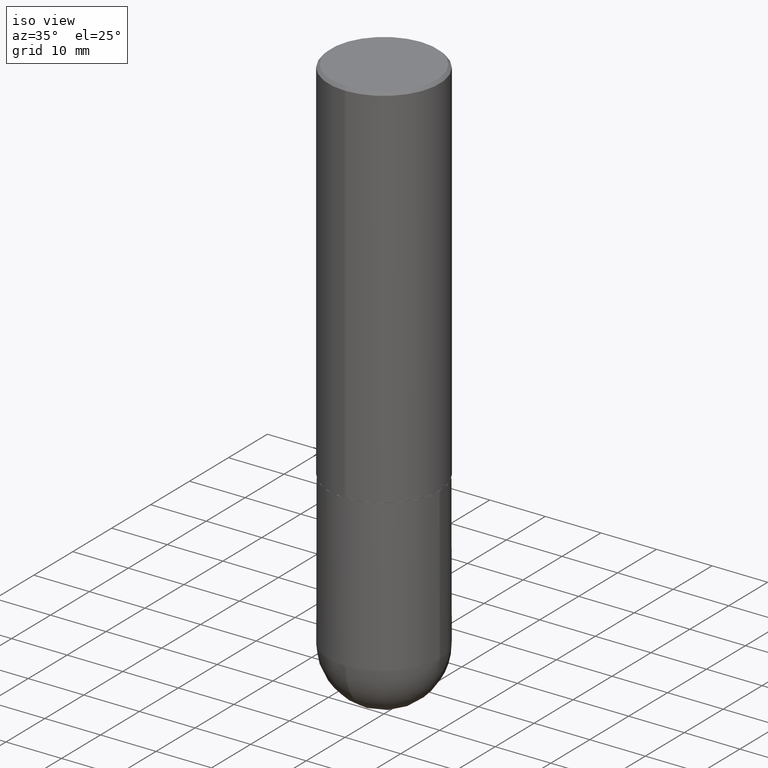
[diagram: clean part render]
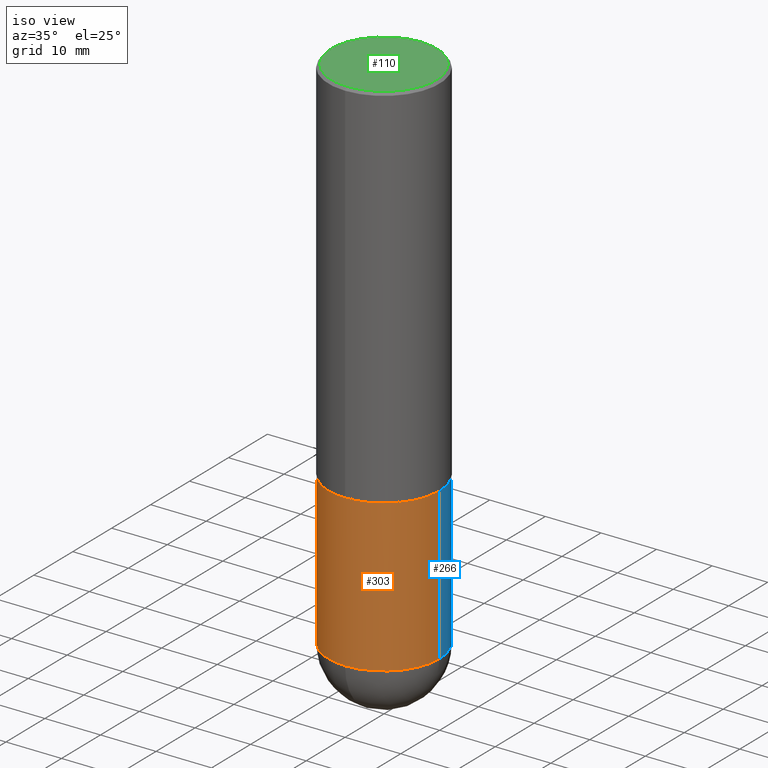
[diagram: same view with three faces highlighted in distinct colors, each labeled with its STEP entity id]
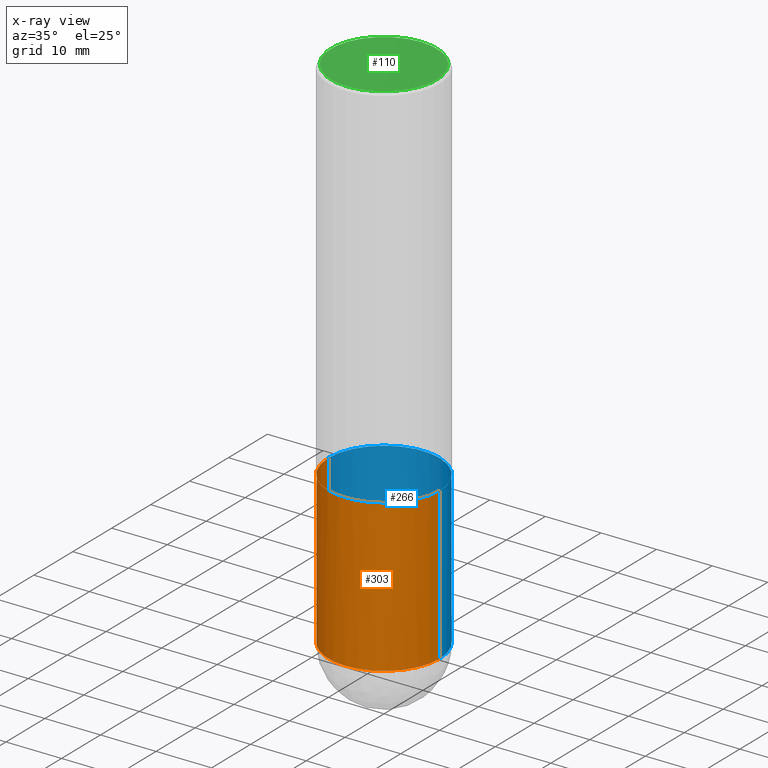
[diagram: x-ray of the same camera — body ghosted, the three highlighted faces saturated]
A machine part, iso view with three faces highlighted in distinct colors.
The next image is the same camera in x-ray (body ghosted, the three faces saturated) — at least one of them is partly hidden behind the body in this view.
Their STEP definitions:

[orange] entity #303 — the highlighted cylindrical surface (partial cylindrical patch) has radius 10 mm, axis along (-0, 0, 1).
#21 = CARTESIAN_POINT ( 'NONE',  ( 9.050190957929953666E-29, -1.292127413879071357E-14, -3.700800000000000090 ) ) ;
#34 = VECTOR ( 'NONE', #102, 39.37007874015748143 ) ;
#43 = DIRECTION ( 'NONE',  ( -2.445468806185136597E-29, 3.491481338843145583E-15, 1.000000000000000000 ) ) ;
#46 = AXIS2_PLACEMENT_3D ( 'NONE', #21, #248, #246 ) ;
#47 = EDGE_CURVE ( 'NONE', #376, #300, #113, .T. ) ;
#61 = CARTESIAN_POINT ( 'NONE',  ( 9.050190957929953666E-29, -1.292127413879071357E-14, -3.700800000000000090 ) ) ;
#69 = CARTESIAN_POINT ( 'NONE',  ( 0.3936999999999999389, -2.749192406205082822E-15, 1.919750796630859611E-29 ) ) ;
#82 = CARTESIAN_POINT ( 'NONE',  ( 0.000000000000000000, 0.000000000000000000, 0.000000000000000000 ) ) ;
#86 = EDGE_CURVE ( 'NONE', #311, #376, #412, .T. ) ;
#87 = EDGE_CURVE ( 'NONE', #213, #300, #129, .T. ) ;
#95 = DIRECTION ( 'NONE',  ( 1.000000000000000000, -6.982962677686269866E-15, 0.000000000000000000 ) ) ;
#101 = ORIENTED_EDGE ( 'NONE', *, *, #86, .F. ) ;
#102 = DIRECTION ( 'NONE',  ( -2.445468806185136877E-29, 3.491481338843145188E-15, 1.000000000000000000 ) ) ;
#108 = ORIENTED_EDGE ( 'NONE', *, *, #185, .T. ) ;
#111 = CARTESIAN_POINT ( 'NONE',  ( 6.421801085042169169E-29, -9.168629995802101197E-15, -2.626000000000000334 ) ) ;
#113 = CIRCLE ( 'NONE', #204, 0.3937000000000000499 ) ;
#129 = LINE ( 'NONE', #69, #318 ) ;
#131 = DIRECTION ( 'NONE',  ( -2.445468806185136877E-29, 3.491481338843145188E-15, 1.000000000000000000 ) ) ;
#139 = CARTESIAN_POINT ( 'NONE',  ( -0.3936999999999999389, -8.247545316608896543E-15, -3.700800000000000090 ) ) ;
#172 = AXIS2_PLACEMENT_3D ( 'NONE', #82, #325, #258 ) ;
#173 = EDGE_CURVE ( 'NONE', #372, #213, #323, .T. ) ;
#181 = DIRECTION ( 'NONE',  ( -2.445468806185136597E-29, 3.491481338843145583E-15, 1.000000000000000000 ) ) ;
#182 = CIRCLE ( 'NONE', #273, 0.3936999999999999389 ) ;
#185 = EDGE_CURVE ( 'NONE', #311, #372, #182, .T. ) ;
#204 = AXIS2_PLACEMENT_3D ( 'NONE', #111, #43, #282 ) ;
#213 = VERTEX_POINT ( 'NONE', #225 ) ;
#225 = CARTESIAN_POINT ( 'NONE',  ( 0.3936999999999999389, -1.379414447350149376E-14, -3.700800000000000090 ) ) ;
#234 = CARTESIAN_POINT ( 'NONE',  ( -0.3937000000000000499, -8.247545316608893388E-15, -2.626000000000000334 ) ) ;
#246 = DIRECTION ( 'NONE',  ( 1.000000000000000000, -6.982962677686269866E-15, 0.000000000000000000 ) ) ;
#248 = DIRECTION ( 'NONE',  ( -2.445468806185136597E-29, 3.491481338843145583E-15, 1.000000000000000000 ) ) ;
#258 = DIRECTION ( 'NONE',  ( 1.000000000000000000, -6.982962677686266711E-15, 4.876176775795935793E-29 ) ) ;
#271 = ORIENTED_EDGE ( 'NONE', *, *, #173, .T. ) ;
#273 = AXIS2_PLACEMENT_3D ( 'NONE', #61, #181, #95 ) ;
#279 = CARTESIAN_POINT ( 'NONE',  ( -0.3936999999999999389, 2.797406750687513998E-15, -1.936584745033356455E-29 ) ) ;
#282 = DIRECTION ( 'NONE',  ( 1.000000000000000000, -6.982962677686267499E-15, 0.000000000000000000 ) ) ;
#293 = CARTESIAN_POINT ( 'NONE',  ( -2.797406750687425645E-15, -0.3937000000000133171, -3.700799999999998313 ) ) ;
#300 = VERTEX_POINT ( 'NONE', #322 ) ;
#303 = ADVANCED_FACE ( 'NONE', ( #357 ), #360, .T. ) ;
#311 = VERTEX_POINT ( 'NONE', #139 ) ;
#318 = VECTOR ( 'NONE', #131, 39.37007874015748143 ) ;
#322 = CARTESIAN_POINT ( 'NONE',  ( 0.3937000000000000499, -1.191782240200718599E-14, -2.626000000000000334 ) ) ;
#323 = CIRCLE ( 'NONE', #46, 0.3936999999999999389 ) ;
#325 = DIRECTION ( 'NONE',  ( -2.445468806185136597E-29, 3.491481338843145583E-15, 1.000000000000000000 ) ) ;
#339 = ORIENTED_EDGE ( 'NONE', *, *, #47, .F. ) ;
#348 = EDGE_LOOP ( 'NONE', ( #101, #108, #271, #373, #339 ) ) ;
#357 = FACE_OUTER_BOUND ( 'NONE', #348, .T. ) ;
#360 = CYLINDRICAL_SURFACE ( 'NONE', #172, 0.3936999999999999389 ) ;
#372 = VERTEX_POINT ( 'NONE', #293 ) ;
#373 = ORIENTED_EDGE ( 'NONE', *, *, #87, .T. ) ;
#376 = VERTEX_POINT ( 'NONE', #234 ) ;
#412 = LINE ( 'NONE', #279, #34 ) ;

[blue] entity #266 — the highlighted cylindrical surface (partial cylindrical patch) has radius 10 mm, axis along (-0, 0, 1).
#3 = FACE_OUTER_BOUND ( 'NONE', #51, .T. ) ;
#17 = AXIS2_PLACEMENT_3D ( 'NONE', #44, #233, #36 ) ;
#27 = ORIENTED_EDGE ( 'NONE', *, *, #86, .T. ) ;
#34 = VECTOR ( 'NONE', #102, 39.37007874015748143 ) ;
#35 = DIRECTION ( 'NONE',  ( -2.445468806185136597E-29, 3.491481338843145583E-15, 1.000000000000000000 ) ) ;
#36 = DIRECTION ( 'NONE',  ( 1.000000000000000000, -6.982962677686267499E-15, 0.000000000000000000 ) ) ;
#44 = CARTESIAN_POINT ( 'NONE',  ( 6.421801085042169169E-29, -9.168629995802101197E-15, -2.626000000000000334 ) ) ;
#51 = EDGE_LOOP ( 'NONE', ( #221, #27, #306, #367, #138 ) ) ;
#69 = CARTESIAN_POINT ( 'NONE',  ( 0.3936999999999999389, -2.749192406205082822E-15, 1.919750796630859611E-29 ) ) ;
#75 = VERTEX_POINT ( 'NONE', #92 ) ;
#86 = EDGE_CURVE ( 'NONE', #311, #376, #412, .T. ) ;
#87 = EDGE_CURVE ( 'NONE', #213, #300, #129, .T. ) ;
#92 = CARTESIAN_POINT ( 'NONE',  ( 2.749192406205172752E-15, 0.3936999999999870048, -3.700800000000001866 ) ) ;
#102 = DIRECTION ( 'NONE',  ( -2.445468806185136877E-29, 3.491481338843145188E-15, 1.000000000000000000 ) ) ;
#112 = DIRECTION ( 'NONE',  ( 1.000000000000000000, -6.982962677686269866E-15, 0.000000000000000000 ) ) ;
#128 = DIRECTION ( 'NONE',  ( 1.000000000000000000, -6.982962677686269866E-15, 0.000000000000000000 ) ) ;
#129 = LINE ( 'NONE', #69, #318 ) ;
#131 = DIRECTION ( 'NONE',  ( -2.445468806185136877E-29, 3.491481338843145188E-15, 1.000000000000000000 ) ) ;
#135 = DIRECTION ( 'NONE',  ( -2.445468806185136597E-29, 3.491481338843145583E-15, 1.000000000000000000 ) ) ;
#138 = ORIENTED_EDGE ( 'NONE', *, *, #314, .T. ) ;
#139 = CARTESIAN_POINT ( 'NONE',  ( -0.3936999999999999389, -8.247545316608896543E-15, -3.700800000000000090 ) ) ;
#144 = EDGE_CURVE ( 'NONE', #75, #311, #295, .T. ) ;
#146 = AXIS2_PLACEMENT_3D ( 'NONE', #354, #135, #112 ) ;
#194 = CARTESIAN_POINT ( 'NONE',  ( 0.000000000000000000, 0.000000000000000000, 0.000000000000000000 ) ) ;
#200 = DIRECTION ( 'NONE',  ( 1.000000000000000000, -6.982962677686266711E-15, 4.876176775795935793E-29 ) ) ;
#213 = VERTEX_POINT ( 'NONE', #225 ) ;
#221 = ORIENTED_EDGE ( 'NONE', *, *, #144, .T. ) ;
#225 = CARTESIAN_POINT ( 'NONE',  ( 0.3936999999999999389, -1.379414447350149376E-14, -3.700800000000000090 ) ) ;
#233 = DIRECTION ( 'NONE',  ( -2.445468806185136597E-29, 3.491481338843145583E-15, 1.000000000000000000 ) ) ;
#234 = CARTESIAN_POINT ( 'NONE',  ( -0.3937000000000000499, -8.247545316608893388E-15, -2.626000000000000334 ) ) ;
#254 = CARTESIAN_POINT ( 'NONE',  ( 9.050190957929953666E-29, -1.292127413879071357E-14, -3.700800000000000090 ) ) ;
#266 = ADVANCED_FACE ( 'NONE', ( #3 ), #284, .T. ) ;
#279 = CARTESIAN_POINT ( 'NONE',  ( -0.3936999999999999389, 2.797406750687513998E-15, -1.936584745033356455E-29 ) ) ;
#284 = CYLINDRICAL_SURFACE ( 'NONE', #369, 0.3936999999999999389 ) ;
#295 = CIRCLE ( 'NONE', #391, 0.3936999999999999389 ) ;
#300 = VERTEX_POINT ( 'NONE', #322 ) ;
#306 = ORIENTED_EDGE ( 'NONE', *, *, #326, .F. ) ;
#311 = VERTEX_POINT ( 'NONE', #139 ) ;
#314 = EDGE_CURVE ( 'NONE', #213, #75, #366, .T. ) ;
#318 = VECTOR ( 'NONE', #131, 39.37007874015748143 ) ;
#322 = CARTESIAN_POINT ( 'NONE',  ( 0.3937000000000000499, -1.191782240200718599E-14, -2.626000000000000334 ) ) ;
#326 = EDGE_CURVE ( 'NONE', #300, #376, #399, .T. ) ;
#354 = CARTESIAN_POINT ( 'NONE',  ( 9.050190957929953666E-29, -1.292127413879071357E-14, -3.700800000000000090 ) ) ;
#366 = CIRCLE ( 'NONE', #146, 0.3936999999999999389 ) ;
#367 = ORIENTED_EDGE ( 'NONE', *, *, #87, .F. ) ;
#369 = AXIS2_PLACEMENT_3D ( 'NONE', #194, #389, #200 ) ;
#376 = VERTEX_POINT ( 'NONE', #234 ) ;
#389 = DIRECTION ( 'NONE',  ( -2.445468806185136597E-29, 3.491481338843145583E-15, 1.000000000000000000 ) ) ;
#391 = AXIS2_PLACEMENT_3D ( 'NONE', #254, #35, #128 ) ;
#399 = CIRCLE ( 'NONE', #17, 0.3937000000000000499 ) ;
#412 = LINE ( 'NONE', #279, #34 ) ;

[green] entity #110 — the highlighted planar face has unit normal (0, -0, -1).
#25 = AXIS2_PLACEMENT_3D ( 'NONE', #42, #386, #133 ) ;
#42 = CARTESIAN_POINT ( 'NONE',  ( -5.529739359596063730E-45, 7.893405734614422993E-31, 2.260990234216733244E-16 ) ) ;
#48 = CIRCLE ( 'NONE', #387, 0.3736999999999997546 ) ;
#84 = CARTESIAN_POINT ( 'NONE',  ( -5.529739359596063730E-45, 7.893405734614422993E-31, 2.260990234216733244E-16 ) ) ;
#93 = ORIENTED_EDGE ( 'NONE', *, *, #395, .T. ) ;
#100 = DIRECTION ( 'NONE',  ( 2.445715720444812897E-29, -3.491127743569801887E-15, -1.000000000000000000 ) ) ;
#110 = ADVANCED_FACE ( 'NONE', ( #379 ), #281, .F. ) ;
#115 = VERTEX_POINT ( 'NONE', #215 ) ;
#121 = VERTEX_POINT ( 'NONE', #408 ) ;
#133 = DIRECTION ( 'NONE',  ( -6.982962677686265922E-15, -1.000000000000000000, 3.491127743569801493E-15 ) ) ;
#177 = DIRECTION ( 'NONE',  ( -6.982962677686265922E-15, -1.000000000000000000, 3.491127743569801493E-15 ) ) ;
#215 = CARTESIAN_POINT ( 'NONE',  ( 2.679362779428219524E-15, 0.3736999999999997546, -1.078535414350361021E-15 ) ) ;
#255 = DIRECTION ( 'NONE',  ( 6.982962677686265922E-15, 1.000000000000000000, -3.491127743569801887E-15 ) ) ;
#256 = ORIENTED_EDGE ( 'NONE', *, *, #346, .T. ) ;
#281 = PLANE ( 'NONE',  #358 ) ;
#315 = CARTESIAN_POINT ( 'NONE',  ( 2.609533152651355831E-15, 0.3736999999999997546, -1.191584926061197412E-15 ) ) ;
#346 = EDGE_CURVE ( 'NONE', #121, #115, #378, .T. ) ;
#358 = AXIS2_PLACEMENT_3D ( 'NONE', #315, #100, #255 ) ;
#361 = DIRECTION ( 'NONE',  ( -2.445715720444812897E-29, 3.491127743569801887E-15, 1.000000000000000000 ) ) ;
#378 = CIRCLE ( 'NONE', #25, 0.3736999999999997546 ) ;
#379 = FACE_OUTER_BOUND ( 'NONE', #392, .T. ) ;
#386 = DIRECTION ( 'NONE',  ( -2.445715720444812897E-29, 3.491127743569801887E-15, 1.000000000000000000 ) ) ;
#387 = AXIS2_PLACEMENT_3D ( 'NONE', #84, #361, #177 ) ;
#392 = EDGE_LOOP ( 'NONE', ( #93, #256 ) ) ;
#395 = EDGE_CURVE ( 'NONE', #115, #121, #48, .T. ) ;
#408 = CARTESIAN_POINT ( 'NONE',  ( -2.632373081744935132E-15, -0.3736999999999997546, 1.530733461193707374E-15 ) ) ;